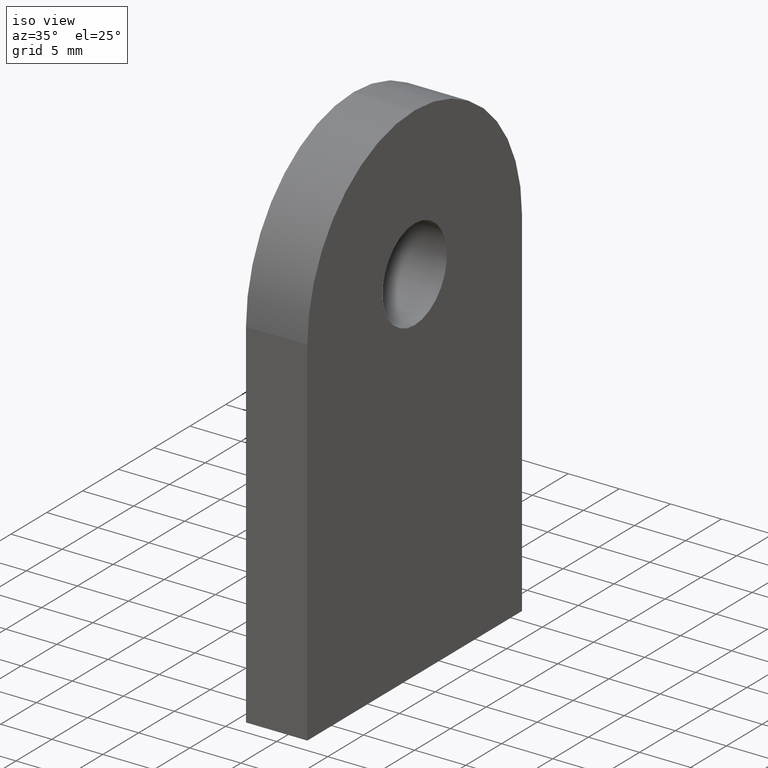
[diagram: clean part render]
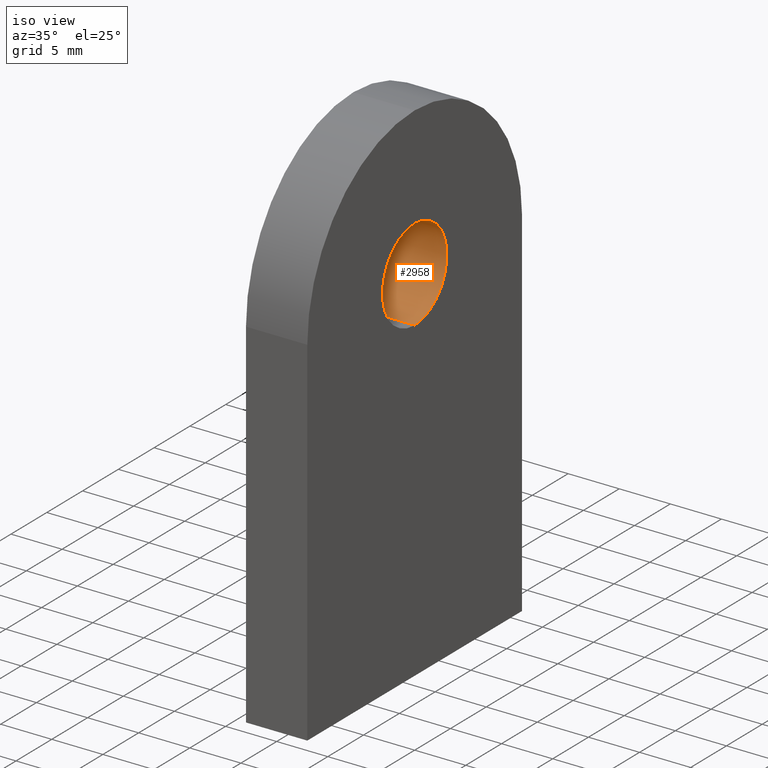
[diagram: same view with one face highlighted and labeled with its STEP entity id]
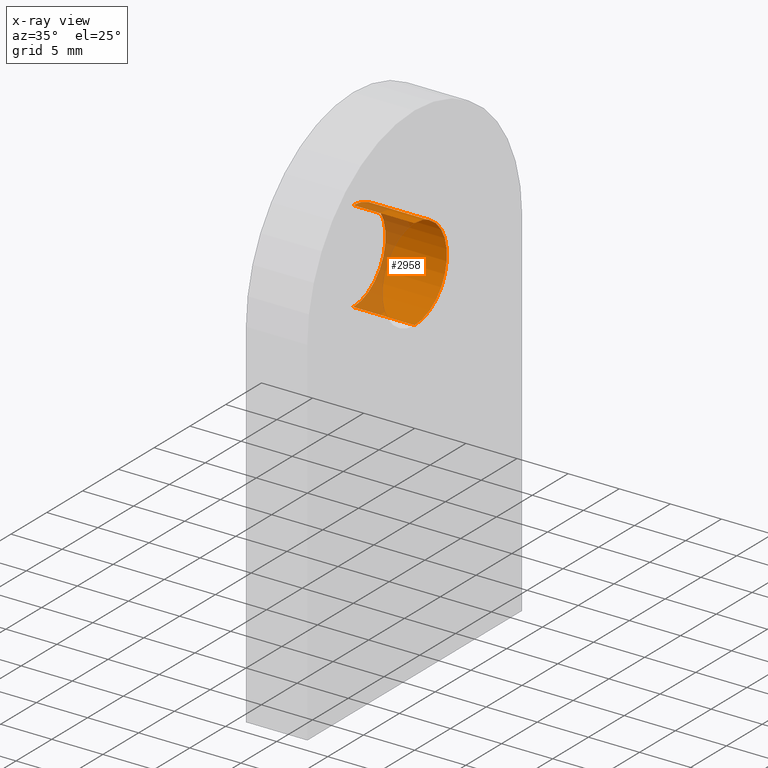
[diagram: x-ray of the same camera — body ghosted, the highlighted face saturated]
A machine part, iso view. The second image highlights one B-rep face of the part: STEP entity #2958.
The next image is the same camera in x-ray: the body ghosted, the highlighted face saturated — about 23% of this face is hidden behind the body in this view.
In plain terms, the highlighted cylindrical surface (partial cylindrical patch) has radius 4.5 mm, axis along (1, -0, -0).
Its self-contained STEP definition (entity closure, byte-faithful):
#155 = VECTOR ( 'NONE', #2225, 1000.000000000000000 ) ;
#782 = DIRECTION ( 'NONE',  ( 0.0000000000000000000, 0.0000000000000000000, -1.000000000000000000 ) ) ;
#818 = CARTESIAN_POINT ( 'NONE',  ( 3.000000000000000000, 0.0000000000000000000, 35.50000000000000000 ) ) ;
#872 = EDGE_CURVE ( 'NONE', #3379, #6853, #11124, .T. ) ;
#992 = LINE ( 'NONE', #3167, #155 ) ;
#1223 = FACE_OUTER_BOUND ( 'NONE', #7599, .T. ) ;
#1712 = ORIENTED_EDGE ( 'NONE', *, *, #872, .F. ) ;
#1721 = AXIS2_PLACEMENT_3D ( 'NONE', #5938, #8577, #10357 ) ;
#1890 = CIRCLE ( 'NONE', #1721, 4.500000000000000900 ) ;
#2225 = DIRECTION ( 'NONE',  ( 1.000000000000000000, -0.0000000000000000000, -0.0000000000000000000 ) ) ;
#2538 = VERTEX_POINT ( 'NONE', #7226 ) ;
#2958 = ADVANCED_FACE ( 'NONE', ( #1223 ), #9452, .F. ) ;
#3167 = CARTESIAN_POINT ( 'NONE',  ( -3.000000000000000000, 0.0000000000000000000, 30.99999999999999600 ) ) ;
#3373 = DIRECTION ( 'NONE',  ( 1.000000000000000000, 0.0000000000000000000, 0.0000000000000000000 ) ) ;
#3379 = VERTEX_POINT ( 'NONE', #4113 ) ;
#3837 = VERTEX_POINT ( 'NONE', #4228 ) ;
#3939 = AXIS2_PLACEMENT_3D ( 'NONE', #818, #3373, #6061 ) ;
#4113 = CARTESIAN_POINT ( 'NONE',  ( -3.000000000000000000, 5.510910596163087600E-016, 40.00000000000000000 ) ) ;
#4228 = CARTESIAN_POINT ( 'NONE',  ( -3.000000000000000000, 0.0000000000000000000, 30.99999999999999600 ) ) ;
#4968 = CARTESIAN_POINT ( 'NONE',  ( 3.000000000000000000, 5.510910596163087600E-016, 40.00000000000000000 ) ) ;
#5671 = EDGE_CURVE ( 'NONE', #3837, #2538, #992, .T. ) ;
#5705 = ORIENTED_EDGE ( 'NONE', *, *, #5671, .T. ) ;
#5938 = CARTESIAN_POINT ( 'NONE',  ( -3.000000000000000000, 0.0000000000000000000, 35.50000000000000000 ) ) ;
#6061 = DIRECTION ( 'NONE',  ( 0.0000000000000000000, 0.0000000000000000000, -1.000000000000000000 ) ) ;
#6217 = CARTESIAN_POINT ( 'NONE',  ( -3.000000000000000000, 0.0000000000000000000, 35.50000000000000000 ) ) ;
#6252 = EDGE_CURVE ( 'NONE', #2538, #6853, #7324, .T. ) ;
#6817 = ORIENTED_EDGE ( 'NONE', *, *, #11263, .F. ) ;
#6853 = VERTEX_POINT ( 'NONE', #4968 ) ;
#7010 = CARTESIAN_POINT ( 'NONE',  ( -3.000000000000000000, 5.510910596163090500E-016, 40.00000000000000000 ) ) ;
#7191 = DIRECTION ( 'NONE',  ( 1.000000000000000000, -0.0000000000000000000, -0.0000000000000000000 ) ) ;
#7226 = CARTESIAN_POINT ( 'NONE',  ( 3.000000000000000000, 0.0000000000000000000, 30.99999999999999600 ) ) ;
#7324 = CIRCLE ( 'NONE', #3939, 4.500000000000000900 ) ;
#7587 = AXIS2_PLACEMENT_3D ( 'NONE', #6217, #7979, #782 ) ;
#7599 = EDGE_LOOP ( 'NONE', ( #1712, #6817, #5705, #8420 ) ) ;
#7979 = DIRECTION ( 'NONE',  ( 1.000000000000000000, -0.0000000000000000000, -0.0000000000000000000 ) ) ;
#8420 = ORIENTED_EDGE ( 'NONE', *, *, #6252, .T. ) ;
#8549 = VECTOR ( 'NONE', #7191, 1000.000000000000000 ) ;
#8577 = DIRECTION ( 'NONE',  ( 1.000000000000000000, 0.0000000000000000000, 0.0000000000000000000 ) ) ;
#9452 = CYLINDRICAL_SURFACE ( 'NONE', #7587, 4.500000000000000900 ) ;
#10357 = DIRECTION ( 'NONE',  ( 0.0000000000000000000, 0.0000000000000000000, -1.000000000000000000 ) ) ;
#11124 = LINE ( 'NONE', #7010, #8549 ) ;
#11263 = EDGE_CURVE ( 'NONE', #3837, #3379, #1890, .T. ) ;